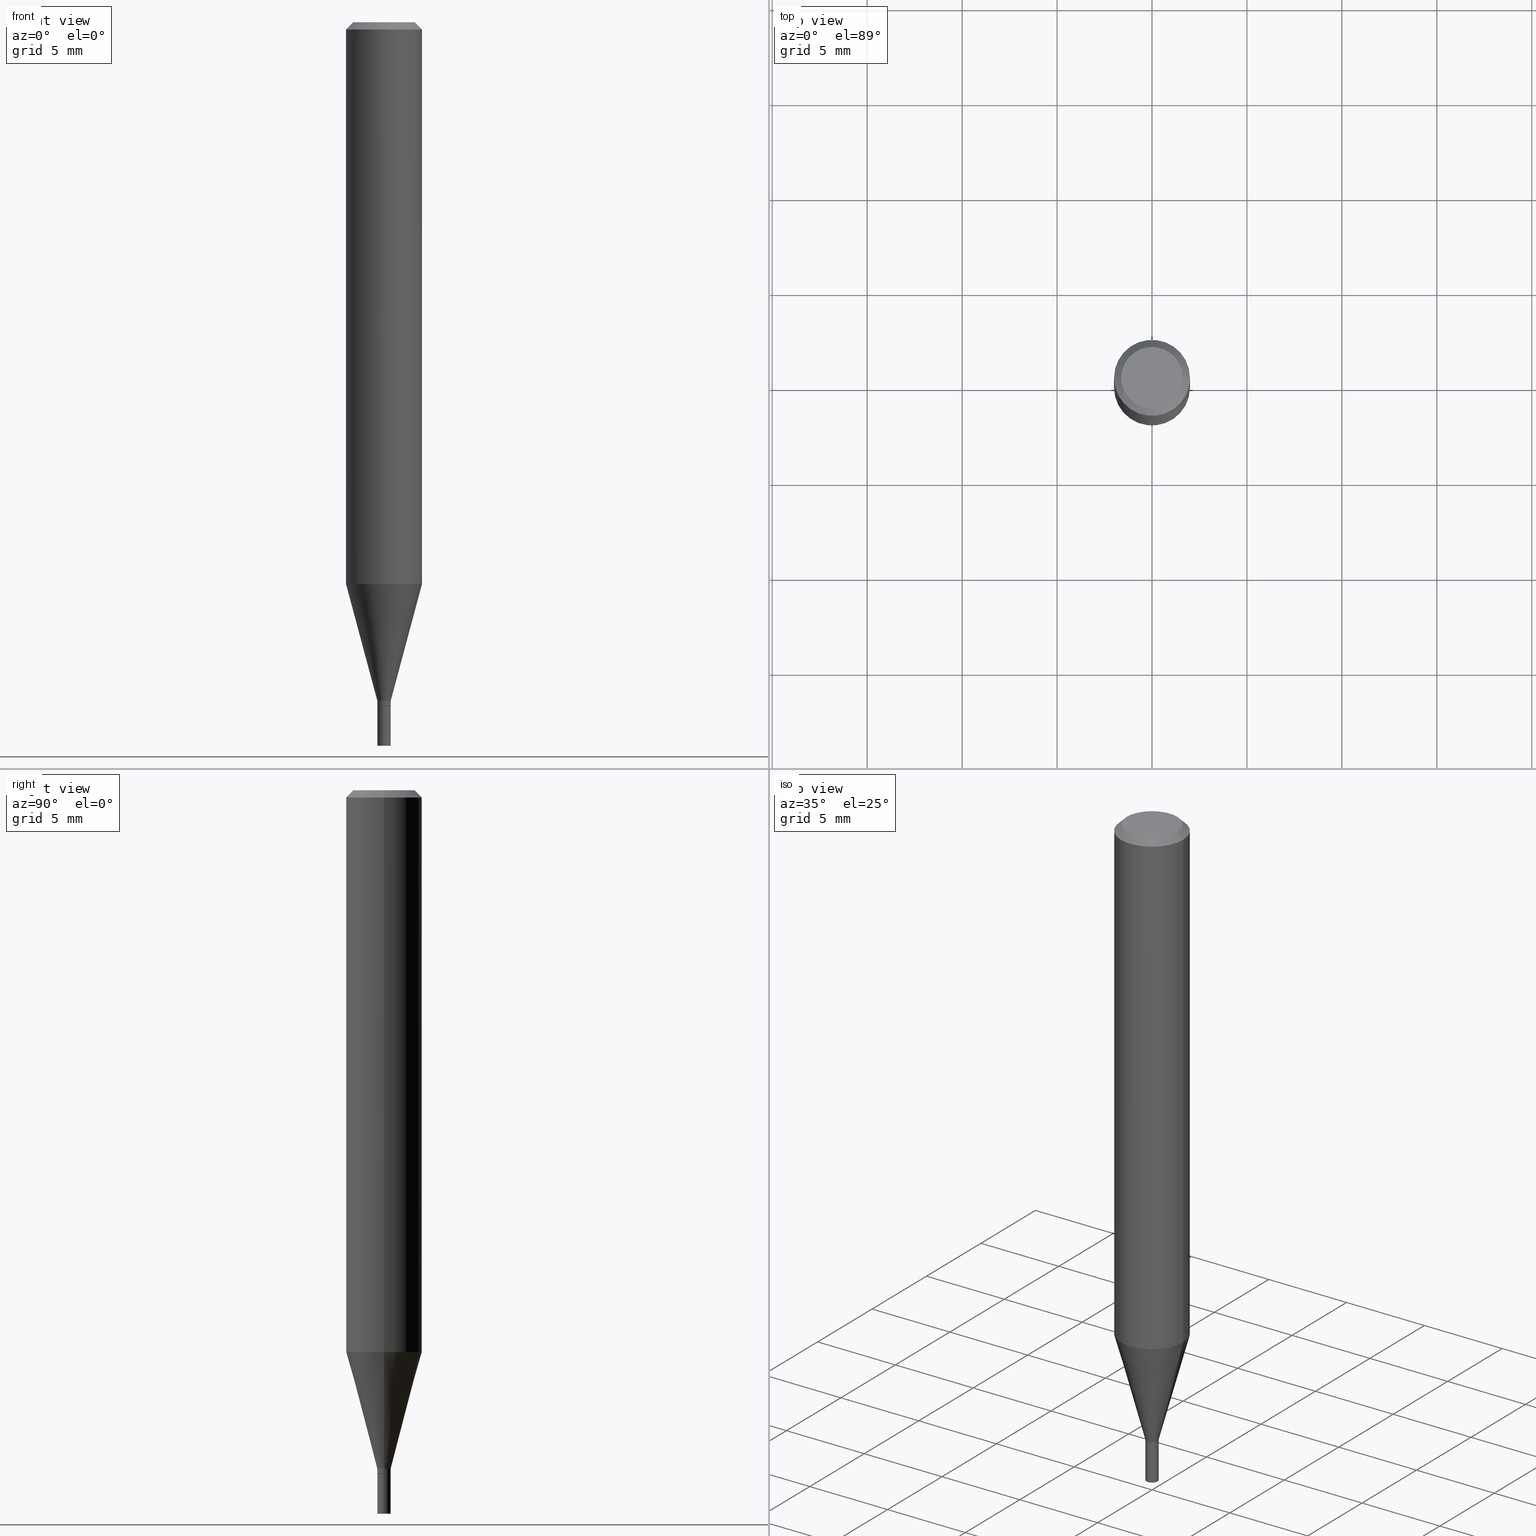
[diagram: canonical four-view strip — front | top / right | iso, engineering-drawing reading convention]
A machine part, canonical four-view strip (front | top / right | iso — engineering-drawing reading convention). The complete STEP part file that produces these views, byte-faithful:
ISO-10303-21;
HEADER;
FILE_DESCRIPTION (( 'STEP AP203' ),
    '1' );
FILE_NAME ('02364.STEP',
    '2024-03-18T20:14:59',
    ( '' ),
    ( '' ),
    'SwSTEP 2.0',
    'SolidWorks 2023',
    '' );
FILE_SCHEMA (( 'CONFIG_CONTROL_DESIGN' ));
ENDSEC;

DATA;
#1 = CONICAL_SURFACE ( 'NONE', #346, 0.01380000000000019232, 0.2617993877991500740 ) ;
#2 = VECTOR ( 'NONE', #18, 39.37007874015748143 ) ;
#3 = DIRECTION ( 'NONE',  ( 0.2588190451025213501, 1.565188264969621968E-15, 0.9659258262890682012 ) ) ;
#4 = DIRECTION ( 'NONE',  ( -2.445468806185136597E-29, 3.491481338843145583E-15, 1.000000000000000000 ) ) ;
#5 = LINE ( 'NONE', #54, #304 ) ;
#6 = DIRECTION ( 'NONE',  ( 1.000000000000000000, -6.982962677686265922E-15, 4.876176775795935232E-29 ) ) ;
#7 = ORIENTED_EDGE ( 'NONE', *, *, #218, .F. ) ;
#8 = ADVANCED_FACE ( 'NONE', ( #87 ), #22, .F. ) ;
#9 = PERSON_AND_ORGANIZATION_ROLE ( 'classification_officer' ) ;
#10 = CIRCLE ( 'NONE', #458, 0.01329999999999999932 ) ;
#11 = APPROVAL_PERSON_ORGANIZATION ( #235, #288, #323 ) ;
#12 = PRODUCT_DEFINITION_SHAPE ( 'NONE', 'NONE',  #403 ) ;
#13 = ORIENTED_EDGE ( 'NONE', *, *, #259, .F. ) ;
#14 = EDGE_CURVE ( 'NONE', #350, #43, #256, .T. ) ;
#15 = EDGE_LOOP ( 'NONE', ( #78, #452 ) ) ;
#16 = AXIS2_PLACEMENT_3D ( 'NONE', #332, #238, #126 ) ;
#17 = CARTESIAN_POINT ( 'NONE',  ( -0.01379999999999992344, -4.848675863338077235E-15, -1.416800000000000281 ) ) ;
#18 = DIRECTION ( 'NONE',  ( -2.445468806185136877E-29, 3.491481338843145188E-15, 1.000000000000000000 ) ) ;
#19 = VERTEX_POINT ( 'NONE', #122 ) ;
#20 = DIRECTION ( 'NONE',  ( -2.445468806185136597E-29, 3.491481338843145583E-15, 1.000000000000000000 ) ) ;
#21 = ORIENTED_EDGE ( 'NONE', *, *, #259, .T. ) ;
#22 = PLANE ( 'NONE',  #158 ) ;
#23 = VECTOR ( 'NONE', #445, 39.37007874015748143 ) ;
#24 = AXIS2_PLACEMENT_3D ( 'NONE', #187, #118, #425 ) ;
#25 = PLANE ( 'NONE',  #136 ) ;
#26 = EDGE_LOOP ( 'NONE', ( #258, #151, #180, #456 ) ) ;
#27 = ADVANCED_FACE ( 'NONE', ( #431 ), #90, .T. ) ;
#28 = ADVANCED_FACE ( 'NONE', ( #429 ), #353, .F. ) ;
#29 = FACE_OUTER_BOUND ( 'NONE', #227, .T. ) ;
#30 = AXIS2_PLACEMENT_3D ( 'NONE', #47, #268, #251 ) ;
#31 = LENGTH_MEASURE_WITH_UNIT ( LENGTH_MEASURE( 0.02539999999999999897 ), #211 );
#32 = DIRECTION ( 'NONE',  ( -2.445468806185136597E-29, 3.491481338843145583E-15, 1.000000000000000000 ) ) ;
#33 = ADVANCED_FACE ( 'NONE', ( #287 ), #1, .T. ) ;
#34 = FACE_OUTER_BOUND ( 'NONE', #226, .T. ) ;
#35 = LINE ( 'NONE', #98, #23 ) ;
#36 = CIRCLE ( 'NONE', #96, 0.01379999999999999977 ) ;
#37 = CC_DESIGN_APPROVAL ( #409, ( #373 ) ) ;
#38 = ADVANCED_FACE ( 'NONE', ( #29 ), #110, .T. ) ;
#39 = DIRECTION ( 'NONE',  ( -2.438088387897960049E-29, 3.491481338843145188E-15, 1.000000000000000000 ) ) ;
#40 = CARTESIAN_POINT ( 'NONE',  ( -0.01380000000000019232, -4.160548815540236745E-15, -1.407000000000000028 ) ) ;
#41 = DIRECTION ( 'NONE',  ( 1.000000000000000000, -6.982962677686277755E-15, 0.000000000000000000 ) ) ;
#42 = EDGE_LOOP ( 'NONE', ( #21, #300, #465, #230 ) ) ;
#43 = VERTEX_POINT ( 'NONE', #399 ) ;
#44 = AXIS2_PLACEMENT_3D ( 'NONE', #395, #62, #204 ) ;
#45 = ORIENTED_EDGE ( 'NONE', *, *, #14, .T. ) ;
#46 = ORIENTED_EDGE ( 'NONE', *, *, #420, .T. ) ;
#47 = CARTESIAN_POINT ( 'NONE',  ( 0.000000000000000000, 0.000000000000000000, 0.000000000000000000 ) ) ;
#48 = FACE_OUTER_BOUND ( 'NONE', #145, .T. ) ;
#49 = DIRECTION ( 'NONE',  ( -2.445468806185136597E-29, 3.491481338843145583E-15, 1.000000000000000000 ) ) ;
#50 = DIRECTION ( 'NONE',  ( -2.438088387897960049E-29, 3.491481338843145188E-15, 1.000000000000000000 ) ) ;
#51 = VECTOR ( 'NONE', #3, 39.37007874015747433 ) ;
#52 = ORIENTED_EDGE ( 'NONE', *, *, #255, .F. ) ;
#53 = ADVANCED_FACE ( 'NONE', ( #463 ), #166, .T. ) ;
#54 = CARTESIAN_POINT ( 'NONE',  ( 0.07875000000000000056, -5.499083108677934443E-16, 3.839989210939299016E-30 ) ) ;
#55 = ORIENTED_EDGE ( 'NONE', *, *, #392, .T. ) ;
#56 = CC_DESIGN_PERSON_AND_ORGANIZATION_ASSIGNMENT ( #200, #152, ( #403 ) ) ;
#57 = AXIS2_PLACEMENT_3D ( 'NONE', #63, #162, #246 ) ;
#58 = APPROVAL_PERSON_ORGANIZATION ( #319, #409, #276 ) ;
#59 = DIRECTION ( 'NONE',  ( -2.445468806185136597E-29, 3.491481338843145583E-15, 1.000000000000000000 ) ) ;
#60 = CIRCLE ( 'NONE', #57, 0.06375000000000000111 ) ;
#61 = AXIS2_PLACEMENT_3D ( 'NONE', #296, #32, #234 ) ;
#62 = DIRECTION ( 'NONE',  ( -2.445468806185136597E-29, 3.491481338843145583E-15, 1.000000000000000000 ) ) ;
#63 = CARTESIAN_POINT ( 'NONE',  ( -4.090239139873613471E-45, 5.839777466044440725E-31, 1.672578742173478425E-16 ) ) ;
#64 = ORIENTED_EDGE ( 'NONE', *, *, #344, .T. ) ;
#65 = DIRECTION ( 'NONE',  ( -2.445468806185136597E-29, 3.491481338843145583E-15, 1.000000000000000000 ) ) ;
#66 = CARTESIAN_POINT ( 'NONE',  ( -0.01380000000000005875, 9.805489753489424308E-17, -6.788130424551798647E-31 ) ) ;
#67 = AXIS2_PLACEMENT_3D ( 'NONE', #143, #186, #349 ) ;
#68 = LINE ( 'NONE', #215, #384 ) ;
#69 = CC_DESIGN_SECURITY_CLASSIFICATION ( #321, ( #373 ) ) ;
#70 = EDGE_CURVE ( 'NONE', #179, #183, #330, .T. ) ;
#71 = LINE ( 'NONE', #141, #2 ) ;
#72 = CARTESIAN_POINT ( 'NONE',  ( 3.465962939006194880E-29, -4.948476501542391231E-15, -1.417300000000000226 ) ) ;
#73 = APPROVAL_STATUS ( 'not_yet_approved' ) ;
#74 = DIRECTION ( 'NONE',  ( -1.000000000000000000, 6.982962677686265922E-15, 0.000000000000000000 ) ) ;
#75 = VERTEX_POINT ( 'NONE', #137 ) ;
#76 = MANIFOLD_SOLID_BREP ( 'Body-Move/Copy2[2]', #378 ) ;
#77 = CLOSED_SHELL ( 'NONE', ( #293, #112, #333, #163 ) ) ;
#78 = ORIENTED_EDGE ( 'NONE', *, *, #220, .T. ) ;
#79 = CC_DESIGN_PERSON_AND_ORGANIZATION_ASSIGNMENT ( #386, #9, ( #321 ) ) ;
#80 = DIRECTION ( 'NONE',  ( -2.445468806185136597E-29, 3.491481338843145583E-15, 1.000000000000000000 ) ) ;
#81 = EDGE_CURVE ( 'NONE', #375, #120, #212, .T. ) ;
#82 = AXIS2_PLACEMENT_3D ( 'NONE', #164, #360, #217 ) ;
#83 = ADVANCED_FACE ( 'NONE', ( #309 ), #148, .T. ) ;
#84 = PERSON_AND_ORGANIZATION ( #144, #168 ) ;
#85 = APPROVAL_DATE_TIME ( #275, #288 ) ;
#86 = VERTEX_POINT ( 'NONE', #406 ) ;
#87 = FACE_OUTER_BOUND ( 'NONE', #15, .T. ) ;
#88 = CARTESIAN_POINT ( 'NONE',  ( -0.07875000000000000056, -1.499729050267316354E-15, -0.01499999999999999944 ) ) ;
#89 = DIRECTION ( 'NONE',  ( 1.000000000000000000, -6.982962677686265922E-15, 4.876176775795935232E-29 ) ) ;
#90 = CYLINDRICAL_SURFACE ( 'NONE', #440, 0.01380000000000005875 ) ;
#91 = CARTESIAN_POINT ( 'NONE',  ( 0.01379999999999999977, -5.044841386494461384E-15, -1.417300000000000226 ) ) ;
#92 = EDGE_CURVE ( 'NONE', #75, #132, #68, .T. ) ;
#93 = COORDINATED_UNIVERSAL_TIME_OFFSET ( 5, 0, .BEHIND. ) ;
#94 = CARTESIAN_POINT ( 'NONE',  ( 3.440774610302487541E-29, -4.912514243752305891E-15, -1.407000000000000028 ) ) ;
#95 = DIRECTION ( 'NONE',  ( 1.000000000000000000, -6.982962677686267499E-15, 0.000000000000000000 ) ) ;
#96 = AXIS2_PLACEMENT_3D ( 'NONE', #140, #405, #171 ) ;
#97 = CIRCLE ( 'NONE', #436, 0.07875000000000000056 ) ;
#98 = CARTESIAN_POINT ( 'NONE',  ( 0.01329999999999999932, -5.041349905155618377E-15, -1.417300000000000226 ) ) ;
#99 = ORIENTED_EDGE ( 'NONE', *, *, #81, .T. ) ;
#100 = DATE_TIME_ROLE ( 'creation_date' ) ;
#101 = FACE_OUTER_BOUND ( 'NONE', #42, .T. ) ;
#102 = DIRECTION ( 'NONE',  ( -2.445468806185136877E-29, 3.491481338843145188E-15, 1.000000000000000000 ) ) ;
#103 = CARTESIAN_POINT ( 'NONE',  ( 0.000000000000000000, 0.000000000000000000, 0.000000000000000000 ) ) ;
#104 = EDGE_CURVE ( 'NONE', #229, #302, #355, .T. ) ;
#105 = AXIS2_PLACEMENT_3D ( 'NONE', #397, #266, #89 ) ;
#106 = CARTESIAN_POINT ( 'NONE',  ( -0.01379999999999999977, -4.994794357368660633E-15, -1.417300000000000226 ) ) ;
#107 = EDGE_CURVE ( 'NONE', #414, #302, #172, .T. ) ;
#108 = EDGE_LOOP ( 'NONE', ( #369, #52 ) ) ;
#109 = CARTESIAN_POINT ( 'NONE',  ( -0.01380000000000019232, -4.814459346217411032E-15, -1.407000000000000028 ) ) ;
#110 = CONICAL_SURFACE ( 'NONE', #128, 0.07875000000000000056, 0.7853981633974428389 ) ;
#111 = VECTOR ( 'NONE', #102, 39.37007874015748143 ) ;
#112 = ADVANCED_FACE ( 'NONE', ( #435 ), #25, .F. ) ;
#113 = ORIENTED_EDGE ( 'NONE', *, *, #396, .F. ) ;
#114 = EDGE_CURVE ( 'NONE', #183, #75, #297, .T. ) ;
#115 = ORIENTED_EDGE ( 'NONE', *, *, #461, .F. ) ;
#116 = CC_DESIGN_DATE_AND_TIME_ASSIGNMENT ( #182, #394, ( #321 ) ) ;
#117 = APPROVAL_DATE_TIME ( #377, #409 ) ;
#118 = DIRECTION ( 'NONE',  ( -2.445468806185136597E-29, 3.491481338843145583E-15, 1.000000000000000000 ) ) ;
#119 = AXIS2_PLACEMENT_3D ( 'NONE', #253, #138, #466 ) ;
#120 = VERTEX_POINT ( 'NONE', #106 ) ;
#121 = PERSON_AND_ORGANIZATION_ROLE ( 'design_owner' ) ;
#122 = CARTESIAN_POINT ( 'NONE',  ( -0.06375000000000000111, 4.713499807438232199E-16, 1.672578742173446131E-16 ) ) ;
#123 = CARTESIAN_POINT ( 'NONE',  ( 0.07875000000000000056, -5.926364374071552647E-16, -0.01499999999999999944 ) ) ;
#124 = DIRECTION ( 'NONE',  ( -2.445468806185136597E-29, 3.491481338843145583E-15, 1.000000000000000000 ) ) ;
#125 = UNCERTAINTY_MEASURE_WITH_UNIT (LENGTH_MEASURE( 1.000000000000000082E-05 ), #446, 'distance_accuracy_value', 'NONE');
#126 = DIRECTION ( 'NONE',  ( 1.000000000000000000, 0.000000000000000000, 0.000000000000000000 ) ) ;
#127 = ORIENTED_EDGE ( 'NONE', *, *, #218, .T. ) ;
#128 = AXIS2_PLACEMENT_3D ( 'NONE', #281, #411, #74 ) ;
#129 = CARTESIAN_POINT ( 'NONE',  ( 4.451638707024993845E-16, 0.06375000000000000111, -1.389529982425766091E-16 ) ) ;
#130 = EDGE_CURVE ( 'NONE', #43, #132, #147, .T. ) ;
#131 = EDGE_CURVE ( 'NONE', #414, #86, #10, .T. ) ;
#132 = VERTEX_POINT ( 'NONE', #88 ) ;
#133 = ORIENTED_EDGE ( 'NONE', *, *, #312, .F. ) ;
#134 = DIRECTION ( 'NONE',  ( -2.445468806185136597E-29, 3.491481338843145583E-15, 1.000000000000000000 ) ) ;
#135 = CARTESIAN_POINT ( 'NONE',  ( 0.06375000000000000111, -5.149965923825449307E-16, 1.672578742173511952E-16 ) ) ;
#136 = AXIS2_PLACEMENT_3D ( 'NONE', #181, #50, #370 ) ;
#137 = CARTESIAN_POINT ( 'NONE',  ( -0.07875000000000000056, -3.506638284863064036E-15, -1.164603300048402845 ) ) ;
#138 = DIRECTION ( 'NONE',  ( -2.445468806185136597E-29, 3.491481338843145583E-15, 1.000000000000000000 ) ) ;
#139 = FACE_OUTER_BOUND ( 'NONE', #376, .T. ) ;
#140 = CARTESIAN_POINT ( 'NONE',  ( 3.668203209277704895E-29, -5.237222008264718177E-15, -1.500000000000000222 ) ) ;
#141 = CARTESIAN_POINT ( 'NONE',  ( 0.01379999999999999977, -9.636488495207048524E-17, 6.729123950598392144E-31 ) ) ;
#142 = CIRCLE ( 'NONE', #61, 0.07875000000000000056 ) ;
#143 = CARTESIAN_POINT ( 'NONE',  ( 2.848001041848637947E-29, -4.066190689274142838E-15, -1.164603300048402845 ) ) ;
#144 = PERSON ( 'UNSPECIFIED', 'UNSPECIFIED', 'UNSPECIFIED', ('UNSPECIFIED'), ('UNSPECIFIED'), ('UNSPECIFIED') ) ;
#145 = EDGE_LOOP ( 'NONE', ( #231, #55, #451, #225 ) ) ;
#146 = ORIENTED_EDGE ( 'NONE', *, *, #255, .T. ) ;
#147 = CIRCLE ( 'NONE', #371, 0.07875000000000000056 ) ;
#148 = CYLINDRICAL_SURFACE ( 'NONE', #30, 0.01380000000000005875 ) ;
#149 = ORIENTED_EDGE ( 'NONE', *, *, #396, .T. ) ;
#150 = EDGE_CURVE ( 'NONE', #120, #375, #262, .T. ) ;
#151 = ORIENTED_EDGE ( 'NONE', *, *, #447, .T. ) ;
#152 = PERSON_AND_ORGANIZATION_ROLE ( 'creator' ) ;
#153 = CARTESIAN_POINT ( 'NONE',  ( -0.01379999999999999977, -4.994794357368660633E-15, -1.500000000000000222 ) ) ;
#154 = DIRECTION ( 'NONE',  ( 1.000000000000000000, -6.982962677686267499E-15, 0.000000000000000000 ) ) ;
#155 = DIRECTION ( 'NONE',  ( -2.445468806185136597E-29, 3.491481338843145583E-15, 1.000000000000000000 ) ) ;
#156 = DIRECTION ( 'NONE',  ( -2.445468806185136877E-29, 3.491481338843145188E-15, 1.000000000000000000 ) ) ;
#157 = EDGE_CURVE ( 'NONE', #86, #414, #415, .T. ) ;
#158 = AXIS2_PLACEMENT_3D ( 'NONE', #129, #240, #329 ) ;
#159 = CC_DESIGN_APPROVAL ( #288, ( #321 ) ) ;
#160 = CARTESIAN_POINT ( 'NONE',  ( 0.01379999999999999977, -5.333586893216788329E-15, -1.500000000000000222 ) ) ;
#161 = EDGE_LOOP ( 'NONE', ( #342, #421, #311, #282 ) ) ;
#162 = DIRECTION ( 'NONE',  ( -2.445468806185136597E-29, 3.491481338843145583E-15, 1.000000000000000000 ) ) ;
#163 = ADVANCED_FACE ( 'NONE', ( #284 ), #439, .F. ) ;
#164 = CARTESIAN_POINT ( 'NONE',  ( 9.636488495210514582E-17, 0.01379999999999505060, -1.417300000000000226 ) ) ;
#165 = CARTESIAN_POINT ( 'NONE',  ( 3.464740204603102639E-29, -4.946730760872969728E-15, -1.416800000000000281 ) ) ;
#166 = CYLINDRICAL_SURFACE ( 'NONE', #105, 0.07875000000000000056 ) ;
#167 = CARTESIAN_POINT ( 'NONE',  ( 3.465962939006194880E-29, -4.948476501542391231E-15, -1.417300000000000226 ) ) ;
#168 = ORGANIZATION ( 'UNSPECIFIED', 'UNSPECIFIED', '' ) ;
#169 = CARTESIAN_POINT ( 'NONE',  ( 3.668203209277705088E-31, -5.237222008264718399E-17, -0.01499999999999999944 ) ) ;
#170 = DIRECTION ( 'NONE',  ( 1.000000000000000000, -6.982962677686265922E-15, 4.876176775795935793E-29 ) ) ;
#171 = DIRECTION ( 'NONE',  ( 1.000000000000000000, -6.982962677686234367E-15, 0.000000000000000000 ) ) ;
#172 = LINE ( 'NONE', #295, #232 ) ;
#173 = DIRECTION ( 'NONE',  ( -2.445468806185136597E-29, 3.491481338843145583E-15, 1.000000000000000000 ) ) ;
#174 = CARTESIAN_POINT ( 'NONE',  ( 0.07875000000000000056, -4.616099000141935394E-15, -1.164603300048402845 ) ) ;
#175 = EDGE_CURVE ( 'NONE', #229, #179, #289, .T. ) ;
#176 = DIRECTION ( 'NONE',  ( -2.445468806185136597E-29, 3.491481338843145583E-15, 1.000000000000000000 ) ) ;
#177 = AXIS2_PLACEMENT_3D ( 'NONE', #290, #80, #432 ) ;
#178 = AXIS2_PLACEMENT_3D ( 'NONE', #310, #424, #250 ) ;
#179 = VERTEX_POINT ( 'NONE', #437 ) ;
#180 = ORIENTED_EDGE ( 'NONE', *, *, #70, .T. ) ;
#181 = CARTESIAN_POINT ( 'NONE',  ( 3.576687321579069994E-29, -5.368277968210015545E-15, -1.500000000000000222 ) ) ;
#182 = DATE_AND_TIME ( #257, #427 ) ;
#183 = VERTEX_POINT ( 'NONE', #174 ) ;
#184 = CARTESIAN_POINT ( 'NONE',  ( 3.465962939006194880E-29, -4.948476501542391231E-15, -1.417300000000000226 ) ) ;
#185 = ORIENTED_EDGE ( 'NONE', *, *, #239, .F. ) ;
#186 = DIRECTION ( 'NONE',  ( -2.445468806185136597E-29, 3.491481338843145583E-15, 1.000000000000000000 ) ) ;
#187 = CARTESIAN_POINT ( 'NONE',  ( 3.440774610302487541E-29, -4.912514243752305891E-15, -1.407000000000000028 ) ) ;
#188 = ORIENTED_EDGE ( 'NONE', *, *, #157, .F. ) ;
#189 = ADVANCED_FACE ( 'NONE', ( #210 ), #337, .T. ) ;
#190 = APPLICATION_PROTOCOL_DEFINITION ( 'international standard', 'config_control_design', 1994, #320 ) ;
#191 = CARTESIAN_POINT ( 'NONE',  ( 0.000000000000000000, 0.000000000000000000, 0.000000000000000000 ) ) ;
#192 = VECTOR ( 'NONE', #382, 39.37007874015747433 ) ;
#193 = CC_DESIGN_PERSON_AND_ORGANIZATION_ASSIGNMENT ( #388, #438, ( #373 ) ) ;
#194 = AXIS2_PLACEMENT_3D ( 'NONE', #327, #233, #198 ) ;
#195 = EDGE_LOOP ( 'NONE', ( #307, #391, #422, #7 ) ) ;
#196 = ADVANCED_FACE ( 'NONE', ( #101 ), #273, .T. ) ;
#197 = SECURITY_CLASSIFICATION_LEVEL ( 'unclassified' ) ;
#198 = DIRECTION ( 'NONE',  ( -1.000000000000000000, 6.982962677686265922E-15, 0.000000000000000000 ) ) ;
#199 = DIRECTION ( 'NONE',  ( 1.000000000000000000, -6.982962677686277755E-15, 0.000000000000000000 ) ) ;
#200 = PERSON_AND_ORGANIZATION ( #144, #168 ) ;
#201 =( NAMED_UNIT ( * ) SI_UNIT ( $, .STERADIAN. ) SOLID_ANGLE_UNIT ( ) );
#202 = ORIENTED_EDGE ( 'NONE', *, *, #107, .F. ) ;
#203 = VECTOR ( 'NONE', #264, 39.37007874015748854 ) ;
#204 = DIRECTION ( 'NONE',  ( 1.000000000000000000, -6.982962677686267499E-15, 0.000000000000000000 ) ) ;
#205 = ORIENTED_EDGE ( 'NONE', *, *, #92, .F. ) ;
#206 = PERSON_AND_ORGANIZATION_ROLE ( 'design_supplier' ) ;
#207 = DIRECTION ( 'NONE',  ( 1.000000000000000000, -6.982962677686267499E-15, 0.000000000000000000 ) ) ;
#208 = CARTESIAN_POINT ( 'NONE',  ( 0.000000000000000000, 0.000000000000000000, 0.000000000000000000 ) ) ;
#209 = CALENDAR_DATE ( 2024, 18, 3 ) ;
#210 = FACE_OUTER_BOUND ( 'NONE', #195, .T. ) ;
#211 =( LENGTH_UNIT ( ) NAMED_UNIT ( * ) SI_UNIT ( $, .METRE. ) );
#212 = CIRCLE ( 'NONE', #177, 0.01379999999999999977 ) ;
#213 = CARTESIAN_POINT ( 'NONE',  ( -0.01329999999999999932, -4.851325090512187647E-15, -1.417300000000000226 ) ) ;
#214 = CIRCLE ( 'NONE', #178, 0.06375000000000000111 ) ;
#215 = CARTESIAN_POINT ( 'NONE',  ( -0.07875000000000000056, 5.595524044110789003E-16, -3.873661383575737792E-30 ) ) ;
#216 = ORIENTED_EDGE ( 'NONE', *, *, #239, .T. ) ;
#217 = DIRECTION ( 'NONE',  ( -1.000000000000000000, 6.982962677686265922E-15, -4.876176775795935793E-29 ) ) ;
#218 = EDGE_CURVE ( 'NONE', #86, #229, #35, .T. ) ;
#219 = APPROVAL_STATUS ( 'not_yet_approved' ) ;
#220 = EDGE_CURVE ( 'NONE', #19, #350, #60, .T. ) ;
#221 = AXIS2_PLACEMENT_3D ( 'NONE', #94, #134, #41 ) ;
#222 = ORIENTED_EDGE ( 'NONE', *, *, #131, .F. ) ;
#223 = AXIS2_PLACEMENT_3D ( 'NONE', #208, #402, #361 ) ;
#224 = ADVANCED_BREP_SHAPE_REPRESENTATION ( '02364', ( #407, #76, #16 ), #417 ) ;
#225 = ORIENTED_EDGE ( 'NONE', *, *, #420, .F. ) ;
#226 = EDGE_LOOP ( 'NONE', ( #261, #45, #416, #185 ) ) ;
#227 = EDGE_LOOP ( 'NONE', ( #267, #322, #216, #149 ) ) ;
#228 = DIRECTION ( 'NONE',  ( -2.445468806185136877E-29, 3.491481338843145188E-15, 1.000000000000000000 ) ) ;
#229 = VERTEX_POINT ( 'NONE', #248 ) ;
#230 = ORIENTED_EDGE ( 'NONE', *, *, #70, .F. ) ;
#231 = ORIENTED_EDGE ( 'NONE', *, *, #244, .T. ) ;
#232 = VECTOR ( 'NONE', #278, 39.37007874015748143 ) ;
#233 = DIRECTION ( 'NONE',  ( 2.445468806185136597E-29, -3.491481338843145583E-15, -1.000000000000000000 ) ) ;
#234 = DIRECTION ( 'NONE',  ( 1.000000000000000000, -6.982962677686268288E-15, 0.000000000000000000 ) ) ;
#235 = PERSON_AND_ORGANIZATION ( #144, #168 ) ;
#236 = CIRCLE ( 'NONE', #364, 0.01380000000000019232 ) ;
#237 = LOCAL_TIME ( 16, 14, 59.00000000000000000, #317 ) ;
#238 = DIRECTION ( 'NONE',  ( 0.000000000000000000, 0.000000000000000000, 1.000000000000000000 ) ) ;
#239 = EDGE_CURVE ( 'NONE', #19, #132, #400, .T. ) ;
#240 = DIRECTION ( 'NONE',  ( 2.438088387897960049E-29, -3.491481338843145188E-15, -1.000000000000000000 ) ) ;
#241 =( NAMED_UNIT ( * ) PLANE_ANGLE_UNIT ( ) SI_UNIT ( $, .RADIAN. ) );
#242 = FACE_OUTER_BOUND ( 'NONE', #161, .T. ) ;
#243 = CC_DESIGN_PERSON_AND_ORGANIZATION_ASSIGNMENT ( #393, #206, ( #373 ) ) ;
#244 = EDGE_CURVE ( 'NONE', #374, #358, #36, .T. ) ;
#245 = AXIS2_PLACEMENT_3D ( 'NONE', #72, #65, #207 ) ;
#246 = DIRECTION ( 'NONE',  ( 1.000000000000000000, -6.982962677686265922E-15, 4.852736867747365646E-29 ) ) ;
#247 = ORIENTED_EDGE ( 'NONE', *, *, #461, .T. ) ;
#248 = CARTESIAN_POINT ( 'NONE',  ( 0.01379999999999992344, -5.043095645825039880E-15, -1.416800000000000281 ) ) ;
#249 = DIRECTION ( 'NONE',  ( 1.000000000000000000, -6.982962677686265922E-15, 0.000000000000000000 ) ) ;
#250 = DIRECTION ( 'NONE',  ( 1.000000000000000000, -6.982962677686265922E-15, 4.852736867747365646E-29 ) ) ;
#251 = DIRECTION ( 'NONE',  ( 1.000000000000000000, -6.982962677686265922E-15, 4.876176775795935793E-29 ) ) ;
#252 = AXIS2_PLACEMENT_3D ( 'NONE', #167, #39, #170 ) ;
#253 = CARTESIAN_POINT ( 'NONE',  ( 3.465962939006194880E-29, -4.948476501542391231E-15, -1.417300000000000226 ) ) ;
#254 = CARTESIAN_POINT ( 'NONE',  ( 3.668203209277705088E-31, -5.237222008264718399E-17, -0.01499999999999999944 ) ) ;
#255 = EDGE_CURVE ( 'NONE', #358, #374, #462, .T. ) ;
#256 = LINE ( 'NONE', #123, #203 ) ;
#257 = CALENDAR_DATE ( 2024, 18, 3 ) ;
#258 = ORIENTED_EDGE ( 'NONE', *, *, #277, .F. ) ;
#259 = EDGE_CURVE ( 'NONE', #179, #324, #236, .T. ) ;
#260 = CARTESIAN_POINT ( 'NONE',  ( 0.01380000000000019232, -5.008879128704377621E-15, -1.407000000000000028 ) ) ;
#261 = ORIENTED_EDGE ( 'NONE', *, *, #306, .F. ) ;
#262 = CIRCLE ( 'NONE', #119, 0.01379999999999999977 ) ;
#263 = CC_DESIGN_APPROVAL ( #340, ( #403 ) ) ;
#264 = DIRECTION ( 'NONE',  ( 0.7071067811865435759, -7.319954787623243424E-15, -0.7071067811865513475 ) ) ;
#265 = APPLICATION_CONTEXT ( 'configuration controlled 3d designs of mechanical parts and assemblies' ) ;
#266 = DIRECTION ( 'NONE',  ( -2.445468806185136597E-29, 3.491481338843145583E-15, 1.000000000000000000 ) ) ;
#267 = ORIENTED_EDGE ( 'NONE', *, *, #14, .F. ) ;
#268 = DIRECTION ( 'NONE',  ( -2.445468806185136597E-29, 3.491481338843145583E-15, 1.000000000000000000 ) ) ;
#269 = CALENDAR_DATE ( 2024, 18, 3 ) ;
#270 = EDGE_LOOP ( 'NONE', ( #428, #418, #13, #348 ) ) ;
#271 = SHAPE_DEFINITION_REPRESENTATION ( #12, #224 ) ;
#272 = ORIENTED_EDGE ( 'NONE', *, *, #131, .T. ) ;
#273 = CONICAL_SURFACE ( 'NONE', #221, 0.01380000000000019232, 0.2617993877991500740 ) ;
#274 = CYLINDRICAL_SURFACE ( 'NONE', #380, 0.07875000000000000056 ) ;
#275 = DATE_AND_TIME ( #459, #305 ) ;
#276 = APPROVAL_ROLE ( '' ) ;
#277 = EDGE_CURVE ( 'NONE', #324, #75, #450, .T. ) ;
#278 = DIRECTION ( 'NONE',  ( -0.7071067811865656694, 7.493145998870420424E-15, 0.7071067811865294761 ) ) ;
#279 = APPROVAL_PERSON_ORGANIZATION ( #308, #340, #410 ) ;
#280 = PRODUCT_RELATED_PRODUCT_CATEGORY ( 'detail', '', ( #343 ) ) ;
#281 = CARTESIAN_POINT ( 'NONE',  ( 3.668203209277705088E-31, -5.237222008264718399E-17, -0.01499999999999999944 ) ) ;
#282 = ORIENTED_EDGE ( 'NONE', *, *, #294, .F. ) ;
#283 = CALENDAR_DATE ( 2024, 18, 3 ) ;
#284 = FACE_OUTER_BOUND ( 'NONE', #372, .T. ) ;
#285 = AXIS2_PLACEMENT_3D ( 'NONE', #334, #49, #413 ) ;
#286 = VECTOR ( 'NONE', #367, 39.37007874015748143 ) ;
#287 = FACE_OUTER_BOUND ( 'NONE', #26, .T. ) ;
#288 = APPROVAL ( #73, 'UNSPECIFIED' ) ;
#289 = LINE ( 'NONE', #325, #359 ) ;
#290 = CARTESIAN_POINT ( 'NONE',  ( 3.465962939006194880E-29, -4.948476501542391231E-15, -1.417300000000000226 ) ) ;
#291 = LINE ( 'NONE', #444, #111 ) ;
#292 = DIRECTION ( 'NONE',  ( -0.7071067811865435759, 2.468850131082215251E-15, -0.7071067811865513475 ) ) ;
#293 = ADVANCED_FACE ( 'NONE', ( #48 ), #345, .T. ) ;
#294 = EDGE_CURVE ( 'NONE', #183, #43, #5, .T. ) ;
#295 = CARTESIAN_POINT ( 'NONE',  ( -0.01329999999999999932, -4.853974317686298059E-15, -1.417300000000000226 ) ) ;
#296 = CARTESIAN_POINT ( 'NONE',  ( 2.848001041848637947E-29, -4.066190689274142838E-15, -1.164603300048402845 ) ) ;
#297 = CIRCLE ( 'NONE', #67, 0.07875000000000000056 ) ;
#298 = LOCAL_TIME ( 16, 14, 59.00000000000000000, #93 ) ;
#299 = COORDINATED_UNIVERSAL_TIME_OFFSET ( 5, 0, .BEHIND. ) ;
#300 = ORIENTED_EDGE ( 'NONE', *, *, #277, .T. ) ;
#301 = ORIENTED_EDGE ( 'NONE', *, *, #150, .T. ) ;
#302 = VERTEX_POINT ( 'NONE', #17 ) ;
#303 = CARTESIAN_POINT ( 'NONE',  ( 3.440774610302487541E-29, -4.912514243752305891E-15, -1.407000000000000028 ) ) ;
#304 = VECTOR ( 'NONE', #228, 39.37007874015748143 ) ;
#305 = LOCAL_TIME ( 16, 14, 59.00000000000000000, #426 ) ;
#306 = EDGE_CURVE ( 'NONE', #350, #19, #214, .T. ) ;
#307 = ORIENTED_EDGE ( 'NONE', *, *, #157, .T. ) ;
#308 = PERSON_AND_ORGANIZATION ( #144, #168 ) ;
#309 = FACE_OUTER_BOUND ( 'NONE', #313, .T. ) ;
#310 = CARTESIAN_POINT ( 'NONE',  ( -4.090239139873613471E-45, 5.839777466044440725E-31, 1.672578742173478425E-16 ) ) ;
#311 = ORIENTED_EDGE ( 'NONE', *, *, #130, .F. ) ;
#312 = EDGE_CURVE ( 'NONE', #302, #324, #404, .T. ) ;
#313 = EDGE_LOOP ( 'NONE', ( #133, #247, #352, #423 ) ) ;
#314 = VECTOR ( 'NONE', #292, 39.37007874015748854 ) ;
#315 = DATE_AND_TIME ( #209, #298 ) ;
#316 = AXIS2_PLACEMENT_3D ( 'NONE', #103, #448, #412 ) ;
#317 = COORDINATED_UNIVERSAL_TIME_OFFSET ( 5, 0, .BEHIND. ) ;
#318 = DIRECTION ( 'NONE',  ( 1.000000000000000000, -6.982962677686265922E-15, 0.000000000000000000 ) ) ;
#319 = PERSON_AND_ORGANIZATION ( #144, #168 ) ;
#320 = APPLICATION_CONTEXT ( 'configuration controlled 3d designs of mechanical parts and assemblies' ) ;
#321 = SECURITY_CLASSIFICATION ( '', '', #197 ) ;
#322 = ORIENTED_EDGE ( 'NONE', *, *, #220, .F. ) ;
#323 = APPROVAL_ROLE ( '' ) ;
#324 = VERTEX_POINT ( 'NONE', #40 ) ;
#325 = CARTESIAN_POINT ( 'NONE',  ( 0.01380000000000005875, -9.636488495207087967E-17, 6.729123950598420170E-31 ) ) ;
#326 = DIRECTION ( 'NONE',  ( -2.445468806185136597E-29, 3.491481338843145583E-15, 1.000000000000000000 ) ) ;
#327 = CARTESIAN_POINT ( 'NONE',  ( 3.668203209277705088E-31, -5.237222008264718399E-17, -0.01499999999999999944 ) ) ;
#328 = FACE_OUTER_BOUND ( 'NONE', #398, .T. ) ;
#329 = DIRECTION ( 'NONE',  ( -1.000000000000000000, 6.982962677686265922E-15, -4.876176775795935793E-29 ) ) ;
#330 = LINE ( 'NONE', #260, #51 ) ;
#331 = AXIS2_PLACEMENT_3D ( 'NONE', #365, #4, #95 ) ;
#332 = CARTESIAN_POINT ( 'NONE',  ( 0.000000000000000000, 0.000000000000000000, 0.000000000000000000 ) ) ;
#333 = ADVANCED_FACE ( 'NONE', ( #139 ), #433, .T. ) ;
#334 = CARTESIAN_POINT ( 'NONE',  ( 3.668203209277704895E-29, -5.237222008264718177E-15, -1.500000000000000222 ) ) ;
#335 = CC_DESIGN_DATE_AND_TIME_ASSIGNMENT ( #441, #100, ( #403 ) ) ;
#336 = ADVANCED_FACE ( 'NONE', ( #328 ), #338, .T. ) ;
#337 = CONICAL_SURFACE ( 'NONE', #44, 0.01329999999999999932, 0.7853981633974739252 ) ;
#338 = CONICAL_SURFACE ( 'NONE', #331, 0.01329999999999999932, 0.7853981633974739252 ) ;
#339 = DIRECTION ( 'NONE',  ( 1.000000000000000000, -6.982962677686277755E-15, 0.000000000000000000 ) ) ;
#340 = APPROVAL ( #219, 'UNSPECIFIED' ) ;
#341 = ORIENTED_EDGE ( 'NONE', *, *, #294, .T. ) ;
#342 = ORIENTED_EDGE ( 'NONE', *, *, #114, .T. ) ;
#343 = PRODUCT ( '02364', '02364', '', ( #354 ) ) ;
#344 = EDGE_CURVE ( 'NONE', #75, #183, #142, .T. ) ;
#345 = CYLINDRICAL_SURFACE ( 'NONE', #316, 0.01379999999999999977 ) ;
#346 = AXIS2_PLACEMENT_3D ( 'NONE', #389, #59, #199 ) ;
#347 = CIRCLE ( 'NONE', #385, 0.01379999999999992344 ) ;
#348 = ORIENTED_EDGE ( 'NONE', *, *, #175, .F. ) ;
#349 = DIRECTION ( 'NONE',  ( 1.000000000000000000, -6.982962677686268288E-15, 0.000000000000000000 ) ) ;
#350 = VERTEX_POINT ( 'NONE', #135 ) ;
#351 = APPROVAL_STATUS ( 'not_yet_approved' ) ;
#352 = ORIENTED_EDGE ( 'NONE', *, *, #175, .T. ) ;
#353 = PLANE ( 'NONE',  #252 ) ;
#354 = MECHANICAL_CONTEXT ( 'NONE', #265, 'mechanical' ) ;
#355 = CIRCLE ( 'NONE', #366, 0.01379999999999992344 ) ;
#356 = CIRCLE ( 'NONE', #24, 0.01380000000000019232 ) ;
#357 = DIRECTION ( 'NONE',  ( 1.000000000000000000, -6.982962677686273021E-15, 0.000000000000000000 ) ) ;
#358 = VERTEX_POINT ( 'NONE', #153 ) ;
#359 = VECTOR ( 'NONE', #442, 39.37007874015748143 ) ;
#360 = DIRECTION ( 'NONE',  ( 2.438088387897960049E-29, -3.491481338843145188E-15, -1.000000000000000000 ) ) ;
#361 = DIRECTION ( 'NONE',  ( 1.000000000000000000, -6.982962677686267499E-15, 4.876176775795936353E-29 ) ) ;
#362 = ADVANCED_FACE ( 'NONE', ( #34 ), #408, .T. ) ;
#363 = CARTESIAN_POINT ( 'NONE',  ( -0.07875000000000000056, 4.975360907851462665E-16, -0.01499999999999999944 ) ) ;
#364 = AXIS2_PLACEMENT_3D ( 'NONE', #303, #176, #339 ) ;
#365 = CARTESIAN_POINT ( 'NONE',  ( 3.465962939006194880E-29, -4.948476501542391231E-15, -1.417300000000000226 ) ) ;
#366 = AXIS2_PLACEMENT_3D ( 'NONE', #368, #124, #357 ) ;
#367 = DIRECTION ( 'NONE',  ( -2.445468806185136877E-29, 3.491481338843145188E-15, 1.000000000000000000 ) ) ;
#368 = CARTESIAN_POINT ( 'NONE',  ( 3.464740204603102639E-29, -4.946730760872969728E-15, -1.416800000000000281 ) ) ;
#369 = ORIENTED_EDGE ( 'NONE', *, *, #244, .F. ) ;
#370 = DIRECTION ( 'NONE',  ( 1.000000000000000000, -6.982962677686265922E-15, 4.876176775795935793E-29 ) ) ;
#371 = AXIS2_PLACEMENT_3D ( 'NONE', #254, #383, #318 ) ;
#372 = EDGE_LOOP ( 'NONE', ( #99, #301 ) ) ;
#373 = PRODUCT_DEFINITION_FORMATION_WITH_SPECIFIED_SOURCE ( 'ANY', '', #343, .NOT_KNOWN. ) ;
#374 = VERTEX_POINT ( 'NONE', #160 ) ;
#375 = VERTEX_POINT ( 'NONE', #91 ) ;
#376 = EDGE_LOOP ( 'NONE', ( #381, #146, #46, #390 ) ) ;
#377 = DATE_AND_TIME ( #269, #453 ) ;
#378 = CLOSED_SHELL ( 'NONE', ( #27, #189, #362, #387, #196, #33, #53, #38, #8, #28, #336, #83 ) ) ;
#379 = CARTESIAN_POINT ( 'NONE',  ( 0.000000000000000000, 0.000000000000000000, 0.000000000000000000 ) ) ;
#380 = AXIS2_PLACEMENT_3D ( 'NONE', #191, #155, #6 ) ;
#381 = ORIENTED_EDGE ( 'NONE', *, *, #392, .F. ) ;
#382 = DIRECTION ( 'NONE',  ( -0.2588190451025213501, 5.211531920934551042E-15, 0.9659258262890682012 ) ) ;
#383 = DIRECTION ( 'NONE',  ( -2.445468806185136597E-29, 3.491481338843145583E-15, 1.000000000000000000 ) ) ;
#384 = VECTOR ( 'NONE', #156, 39.37007874015748143 ) ;
#385 = AXIS2_PLACEMENT_3D ( 'NONE', #165, #326, #443 ) ;
#386 = PERSON_AND_ORGANIZATION ( #144, #168 ) ;
#387 = ADVANCED_FACE ( 'NONE', ( #242 ), #274, .T. ) ;
#388 = PERSON_AND_ORGANIZATION ( #144, #168 ) ;
#389 = CARTESIAN_POINT ( 'NONE',  ( 3.440774610302487541E-29, -4.912514243752305891E-15, -1.407000000000000028 ) ) ;
#390 = ORIENTED_EDGE ( 'NONE', *, *, #150, .F. ) ;
#391 = ORIENTED_EDGE ( 'NONE', *, *, #107, .T. ) ;
#392 = EDGE_CURVE ( 'NONE', #358, #120, #291, .T. ) ;
#393 = PERSON_AND_ORGANIZATION ( #144, #168 ) ;
#394 = DATE_TIME_ROLE ( 'classification_date' ) ;
#395 = CARTESIAN_POINT ( 'NONE',  ( 3.465962939006194880E-29, -4.948476501542391231E-15, -1.417300000000000226 ) ) ;
#396 = EDGE_CURVE ( 'NONE', #132, #43, #97, .T. ) ;
#397 = CARTESIAN_POINT ( 'NONE',  ( 0.000000000000000000, 0.000000000000000000, 0.000000000000000000 ) ) ;
#398 = EDGE_LOOP ( 'NONE', ( #202, #272, #127, #115 ) ) ;
#399 = CARTESIAN_POINT ( 'NONE',  ( 0.07875000000000000056, -6.022805309504406221E-16, -0.01499999999999999944 ) ) ;
#400 = LINE ( 'NONE', #363, #314 ) ;
#401 = DIMENSIONAL_EXPONENTS ( 1.000000000000000000, 0.000000000000000000, 0.000000000000000000, 0.000000000000000000, 0.000000000000000000, 0.000000000000000000, 0.000000000000000000 ) ;
#402 = DIRECTION ( 'NONE',  ( -2.445468806185136597E-29, 3.491481338843145583E-15, 1.000000000000000000 ) ) ;
#403 = PRODUCT_DEFINITION ( 'UNKNOWN', '', #373, #449 ) ;
#404 = LINE ( 'NONE', #66, #286 ) ;
#405 = DIRECTION ( 'NONE',  ( -2.445468806185136597E-29, 3.491481338843145583E-15, 1.000000000000000000 ) ) ;
#406 = CARTESIAN_POINT ( 'NONE',  ( 0.01329999999999999932, -5.041349905155618377E-15, -1.417300000000000226 ) ) ;
#407 = MANIFOLD_SOLID_BREP ( 'Body-Move/Copy2[1]', #77 ) ;
#408 = CONICAL_SURFACE ( 'NONE', #194, 0.07875000000000000056, 0.7853981633974428389 ) ;
#409 = APPROVAL ( #351, 'UNSPECIFIED' ) ;
#410 = APPROVAL_ROLE ( '' ) ;
#411 = DIRECTION ( 'NONE',  ( 2.445468806185136597E-29, -3.491481338843145583E-15, -1.000000000000000000 ) ) ;
#412 = DIRECTION ( 'NONE',  ( 1.000000000000000000, -6.982962677686267499E-15, 4.876176775795936353E-29 ) ) ;
#413 = DIRECTION ( 'NONE',  ( 1.000000000000000000, -6.982962677686234367E-15, 0.000000000000000000 ) ) ;
#414 = VERTEX_POINT ( 'NONE', #213 ) ;
#415 = CIRCLE ( 'NONE', #245, 0.01329999999999999932 ) ;
#416 = ORIENTED_EDGE ( 'NONE', *, *, #130, .T. ) ;
#417 =( GEOMETRIC_REPRESENTATION_CONTEXT ( 3 ) GLOBAL_UNCERTAINTY_ASSIGNED_CONTEXT ( ( #125 ) ) GLOBAL_UNIT_ASSIGNED_CONTEXT ( ( #446, #241, #201 ) ) REPRESENTATION_CONTEXT ( 'NONE', 'WORKASPACE' ) );
#418 = ORIENTED_EDGE ( 'NONE', *, *, #312, .T. ) ;
#419 = EDGE_LOOP ( 'NONE', ( #188, #222 ) ) ;
#420 = EDGE_CURVE ( 'NONE', #374, #375, #71, .T. ) ;
#421 = ORIENTED_EDGE ( 'NONE', *, *, #92, .T. ) ;
#422 = ORIENTED_EDGE ( 'NONE', *, *, #104, .F. ) ;
#423 = ORIENTED_EDGE ( 'NONE', *, *, #447, .F. ) ;
#424 = DIRECTION ( 'NONE',  ( -2.445468806185136597E-29, 3.491481338843145583E-15, 1.000000000000000000 ) ) ;
#425 = DIRECTION ( 'NONE',  ( 1.000000000000000000, -6.982962677686277755E-15, 0.000000000000000000 ) ) ;
#426 = COORDINATED_UNIVERSAL_TIME_OFFSET ( 5, 0, .BEHIND. ) ;
#427 = LOCAL_TIME ( 16, 14, 59.00000000000000000, #299 ) ;
#428 = ORIENTED_EDGE ( 'NONE', *, *, #104, .T. ) ;
#429 = FACE_OUTER_BOUND ( 'NONE', #419, .T. ) ;
#430 = CC_DESIGN_PERSON_AND_ORGANIZATION_ASSIGNMENT ( #84, #121, ( #343 ) ) ;
#431 = FACE_OUTER_BOUND ( 'NONE', #270, .T. ) ;
#432 = DIRECTION ( 'NONE',  ( 1.000000000000000000, -6.982962677686234367E-15, 0.000000000000000000 ) ) ;
#433 = CYLINDRICAL_SURFACE ( 'NONE', #223, 0.01379999999999999977 ) ;
#434 = DIRECTION ( 'NONE',  ( 1.000000000000000000, -6.982962677686265922E-15, 4.876176775795935793E-29 ) ) ;
#435 = FACE_OUTER_BOUND ( 'NONE', #108, .T. ) ;
#436 = AXIS2_PLACEMENT_3D ( 'NONE', #169, #173, #249 ) ;
#437 = CARTESIAN_POINT ( 'NONE',  ( 0.01380000000000019232, -5.008879128704377621E-15, -1.407000000000000028 ) ) ;
#438 = PERSON_AND_ORGANIZATION_ROLE ( 'creator' ) ;
#439 = PLANE ( 'NONE',  #82 ) ;
#440 = AXIS2_PLACEMENT_3D ( 'NONE', #379, #457, #434 ) ;
#441 = DATE_AND_TIME ( #283, #237 ) ;
#442 = DIRECTION ( 'NONE',  ( -2.445468806185136877E-29, 3.491481338843145188E-15, 1.000000000000000000 ) ) ;
#443 = DIRECTION ( 'NONE',  ( 1.000000000000000000, -6.982962677686273021E-15, 0.000000000000000000 ) ) ;
#444 = CARTESIAN_POINT ( 'NONE',  ( -0.01379999999999999977, 9.805489753489382399E-17, -6.788130424551770621E-31 ) ) ;
#445 = DIRECTION ( 'NONE',  ( 0.7071067811865656694, -2.468850131082446387E-15, 0.7071067811865294761 ) ) ;
#446 =( CONVERSION_BASED_UNIT ( 'INCH', #31 ) LENGTH_UNIT ( ) NAMED_UNIT ( #401 ) );
#447 = EDGE_CURVE ( 'NONE', #324, #179, #356, .T. ) ;
#448 = DIRECTION ( 'NONE',  ( -2.445468806185136597E-29, 3.491481338843145583E-15, 1.000000000000000000 ) ) ;
#449 = DESIGN_CONTEXT ( 'detailed design', #320, 'design' ) ;
#450 = LINE ( 'NONE', #109, #192 ) ;
#451 = ORIENTED_EDGE ( 'NONE', *, *, #81, .F. ) ;
#452 = ORIENTED_EDGE ( 'NONE', *, *, #306, .T. ) ;
#453 = LOCAL_TIME ( 16, 14, 59.00000000000000000, #455 ) ;
#454 = EDGE_LOOP ( 'NONE', ( #205, #64, #341, #113 ) ) ;
#455 = COORDINATED_UNIVERSAL_TIME_OFFSET ( 5, 0, .BEHIND. ) ;
#456 = ORIENTED_EDGE ( 'NONE', *, *, #344, .F. ) ;
#457 = DIRECTION ( 'NONE',  ( -2.445468806185136597E-29, 3.491481338843145583E-15, 1.000000000000000000 ) ) ;
#458 = AXIS2_PLACEMENT_3D ( 'NONE', #184, #20, #154 ) ;
#459 = CALENDAR_DATE ( 2024, 18, 3 ) ;
#460 = APPROVAL_DATE_TIME ( #315, #340 ) ;
#461 = EDGE_CURVE ( 'NONE', #302, #229, #347, .T. ) ;
#462 = CIRCLE ( 'NONE', #285, 0.01379999999999999977 ) ;
#463 = FACE_OUTER_BOUND ( 'NONE', #454, .T. ) ;
#464 = APPLICATION_PROTOCOL_DEFINITION ( 'international standard', 'config_control_design', 1994, #265 ) ;
#465 = ORIENTED_EDGE ( 'NONE', *, *, #114, .F. ) ;
#466 = DIRECTION ( 'NONE',  ( 1.000000000000000000, -6.982962677686234367E-15, 0.000000000000000000 ) ) ;
ENDSEC;
END-ISO-10303-21;
